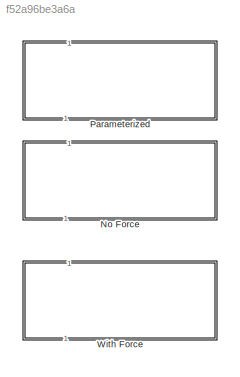
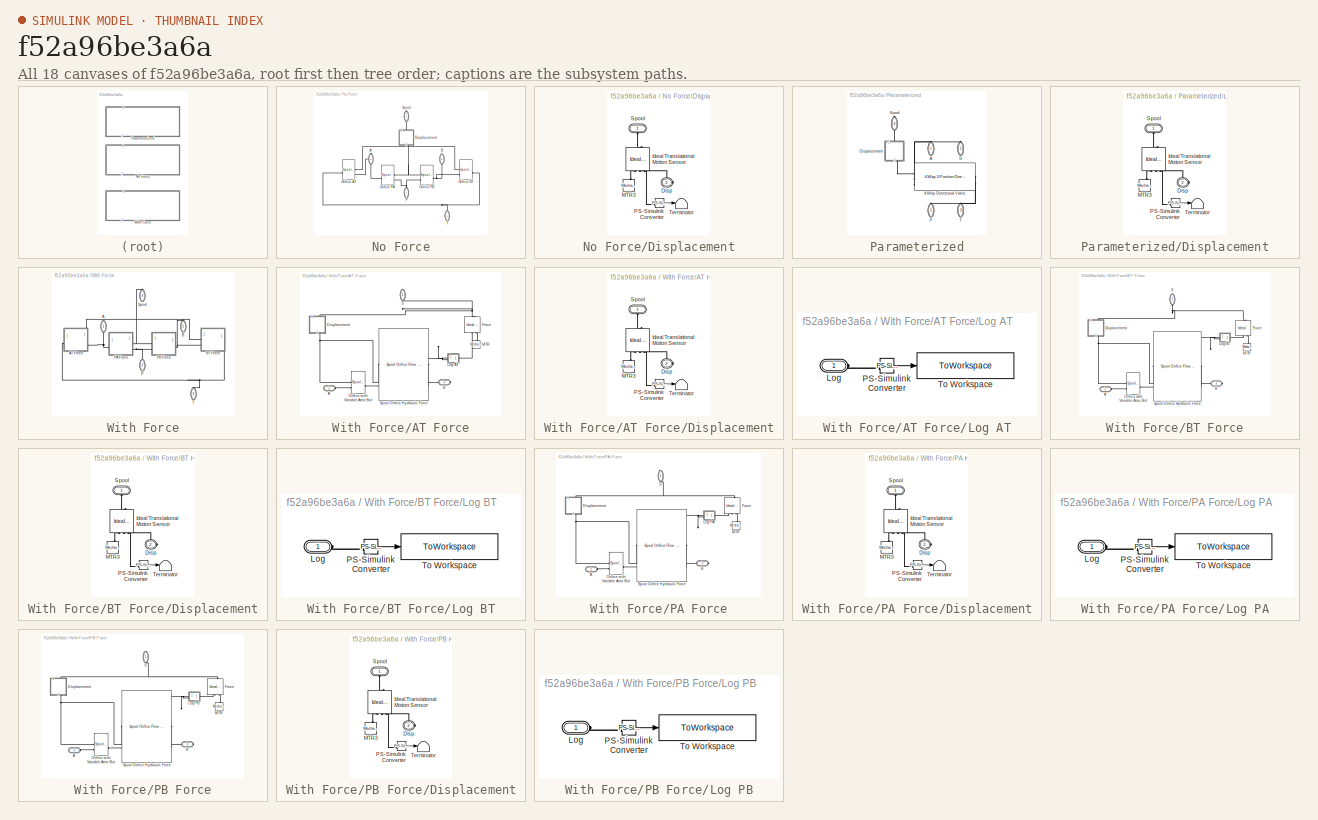
[diagram: thumbnail index - all 18 canvases of the model, root first then tree order]
MODEL slx_f52a96be3a6a
KIND library
CONFIG SolverName = ode45
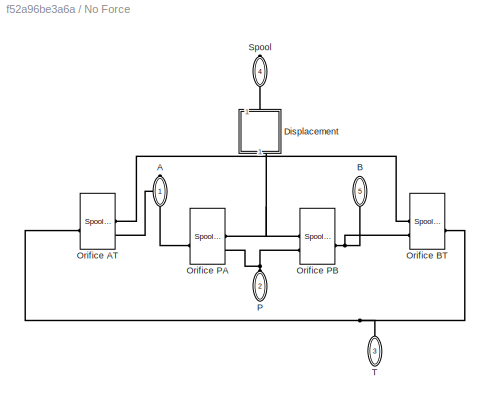
BLOCK [SubSystem] No Force
  NameLocation = right
  ShowPortLabels = FromPortBlockName
BLOCK [PMIOPort] No Force/A
  NameLocation = left
  Side = Right
BLOCK [PMIOPort] No Force/B
  NameLocation = right
  Port = 5
  Side = Right
BLOCK [SubSystem] No Force/Displacement
  NameLocation = right
BLOCK [PMIOPort] No Force/Displacement/Disp
  NameLocation = top
  Port = 2
  Side = Right
BLOCK [Reference] No Force/Displacement/Ideal Translational Motion Sensor  REF=fl_lib/Mechanical/Mechanical Sensors/Ideal Translational
Motion Sensor
  NameLocation = left
  SourceBlock = fl_lib/Mechanical/Mechanical Sensors/Ideal Translational\nMotion Sensor
  SourceType = Ideal Translational\nMotion Sensor
  Tag = Factory Generic
BLOCK [Reference] No Force/Displacement/MTR3  REF=fl_lib/Mechanical/Translational
Elements/Mechanical
Translational
Reference
  NameLocation = left
  SourceBlock = fl_lib/Mechanical/Translational\nElements/Mechanical\nTranslational\nReference
  SourceType = Mechanical\nTranslational\nReference
  Tag = Factory Generic
BLOCK [Reference] No Force/Displacement/PS-Simulink Converter  REF=nesl_utility/PS-Simulink
Converter
  SourceBlock = nesl_utility/PS-Simulink\nConverter
  SourceType = PS-Simulink\nConverter
BLOCK [PMIOPort] No Force/Displacement/Spool
  NameLocation = right
  Side = Left
BLOCK [Terminator] No Force/Displacement/Terminator
BLOCK [Reference] No Force/Orifice AT  REF=SimscapeFluids_lib/Isothermal Liquid/Valves & Orifices/Orifices/Spool Orifice (IL)
  LibrarySourceBlock = sh_lib/Orifices/Orifice with\nVariable Area Slot
  SourceBlock = SimscapeFluids_lib/Isothermal Liquid/Valves & Orifices/Orifices/Spool Orifice (IL)
  SourceType = Spool Orifice (IL)
  Tag = Factory Generic
BLOCK [Reference] No Force/Orifice BT  REF=SimscapeFluids_lib/Isothermal Liquid/Valves & Orifices/Orifices/Spool Orifice (IL)
  LibrarySourceBlock = sh_lib/Orifices/Orifice with\nVariable Area Slot
  SourceBlock = SimscapeFluids_lib/Isothermal Liquid/Valves & Orifices/Orifices/Spool Orifice (IL)
  SourceType = Spool Orifice (IL)
  Tag = Factory Generic
BLOCK [Reference] No Force/Orifice PA  REF=SimscapeFluids_lib/Isothermal Liquid/Valves & Orifices/Orifices/Spool Orifice (IL)
  LibrarySourceBlock = sh_lib/Orifices/Orifice with\nVariable Area Slot
  SourceBlock = SimscapeFluids_lib/Isothermal Liquid/Valves & Orifices/Orifices/Spool Orifice (IL)
  SourceType = Spool Orifice (IL)
  Tag = Factory Generic
BLOCK [Reference] No Force/Orifice PB  REF=SimscapeFluids_lib/Isothermal Liquid/Valves & Orifices/Orifices/Spool Orifice (IL)
  LibrarySourceBlock = sh_lib/Orifices/Orifice with\nVariable Area Slot
  SourceBlock = SimscapeFluids_lib/Isothermal Liquid/Valves & Orifices/Orifices/Spool Orifice (IL)
  SourceType = Spool Orifice (IL)
  Tag = Factory Generic
BLOCK [PMIOPort] No Force/P
  NameLocation = right
  Port = 2
  Side = Left
BLOCK [PMIOPort] No Force/Spool
  NameLocation = right
  Port = 4
  Side = Right
BLOCK [PMIOPort] No Force/T
  NameLocation = left
  Port = 3
  Side = Left
BLOCK [SubSystem] Parameterized
  NameLocation = right
  ShowPortLabels = FromPortBlockName
BLOCK [Reference] Parameterized/4-Way Directional Valve  REF=SimscapeFluids_lib/Isothermal Liquid/Valves & Orifices/Directional Control
Valves/4-Way 3-Position
Directional Valve
(IL)
  LibrarySourceBlock = sh_lib/Valves/Directional Valves/4-Way Directional\nValve
  NameLocation = right
  SourceBlock = SimscapeFluids_lib/Isothermal Liquid/Valves & Orifices/Directional Control\nValves/4-Way 3-Position\nDirectional Valve\n(IL)
  SourceType = 4-Way 3-Position\nDirectional Valve\n(IL)
BLOCK [PMIOPort] Parameterized/A
  NameLocation = right
  Side = Right
BLOCK [PMIOPort] Parameterized/B
  NameLocation = left
  Port = 5
  Side = Right
BLOCK [SubSystem] Parameterized/Displacement
  NameLocation = left
BLOCK [PMIOPort] Parameterized/Displacement/Disp
  NameLocation = top
  Port = 2
  Side = Right
BLOCK [Reference] Parameterized/Displacement/Ideal Translational Motion Sensor  REF=fl_lib/Mechanical/Mechanical Sensors/Ideal Translational
Motion Sensor
  NameLocation = left
  SourceBlock = fl_lib/Mechanical/Mechanical Sensors/Ideal Translational\nMotion Sensor
  SourceType = Ideal Translational\nMotion Sensor
  Tag = Factory Generic
BLOCK [Reference] Parameterized/Displacement/MTR3  REF=fl_lib/Mechanical/Translational
Elements/Mechanical
Translational
Reference
  NameLocation = left
  SourceBlock = fl_lib/Mechanical/Translational\nElements/Mechanical\nTranslational\nReference
  SourceType = Mechanical\nTranslational\nReference
  Tag = Factory Generic
BLOCK [Reference] Parameterized/Displacement/PS-Simulink Converter  REF=nesl_utility/PS-Simulink
Converter
  SourceBlock = nesl_utility/PS-Simulink\nConverter
  SourceType = PS-Simulink\nConverter
BLOCK [PMIOPort] Parameterized/Displacement/Spool
  NameLocation = right
  Side = Left
BLOCK [Terminator] Parameterized/Displacement/Terminator
BLOCK [PMIOPort] Parameterized/P
  NameLocation = right
  Port = 2
  Side = Left
BLOCK [PMIOPort] Parameterized/Spool
  NameLocation = right
  Port = 4
  Side = Right
BLOCK [PMIOPort] Parameterized/T
  NameLocation = right
  Port = 3
  Side = Left
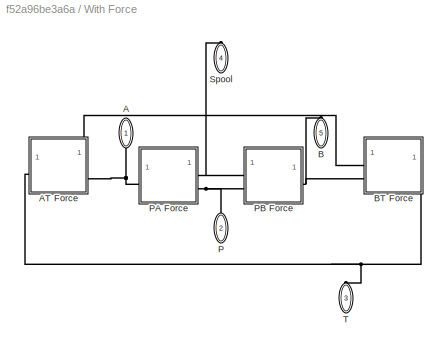
BLOCK [SubSystem] With Force
  NameLocation = right
  ShowPortLabels = FromPortBlockName
BLOCK [PMIOPort] With Force/A
  NameLocation = left
  Side = Right
BLOCK [SubSystem] With Force/AT Force
BLOCK [PMIOPort] With Force/AT Force/A
  Port = 2
  Side = Left
BLOCK [PMIOPort] With Force/AT Force/B
  Port = 3
  Side = Right
BLOCK [SubSystem] With Force/AT Force/Displacement
  NameLocation = right
BLOCK [PMIOPort] With Force/AT Force/Displacement/Disp
  NameLocation = top
  Port = 2
  Side = Right
BLOCK [Reference] With Force/AT Force/Displacement/Ideal Translational Motion Sensor  REF=fl_lib/Mechanical/Mechanical Sensors/Ideal Translational
Motion Sensor
  NameLocation = left
  SourceBlock = fl_lib/Mechanical/Mechanical Sensors/Ideal Translational\nMotion Sensor
  SourceType = Ideal Translational\nMotion Sensor
  Tag = Factory Generic
BLOCK [Reference] With Force/AT Force/Displacement/MTR3  REF=fl_lib/Mechanical/Translational
Elements/Mechanical
Translational
Reference
  NameLocation = left
  SourceBlock = fl_lib/Mechanical/Translational\nElements/Mechanical\nTranslational\nReference
  SourceType = Mechanical\nTranslational\nReference
  Tag = Factory Generic
BLOCK [Reference] With Force/AT Force/Displacement/PS-Simulink Converter  REF=nesl_utility/PS-Simulink
Converter
  SourceBlock = nesl_utility/PS-Simulink\nConverter
  SourceType = PS-Simulink\nConverter
BLOCK [PMIOPort] With Force/AT Force/Displacement/Spool
  NameLocation = right
  Side = Left
BLOCK [Terminator] With Force/AT Force/Displacement/Terminator
BLOCK [Reference] With Force/AT Force/Force  REF=fl_lib/Mechanical/Mechanical Sources/Ideal Force Source
  NameLocation = left
  SourceBlock = fl_lib/Mechanical/Mechanical Sources/Ideal Force Source
  SourceType = Ideal Force Source
  Tag = Factory Generic
BLOCK [SubSystem] With Force/AT Force/Log AT
BLOCK [PMIOPort] With Force/AT Force/Log AT/Log
  Side = Left
BLOCK [Reference] With Force/AT Force/Log AT/PS-Simulink Converter  REF=nesl_utility/PS-Simulink
Converter
  SourceBlock = nesl_utility/PS-Simulink\nConverter
  SourceType = PS-Simulink\nConverter
BLOCK [ToWorkspace] With Force/AT Force/Log AT/To Workspace
  MaxDataPoints = inf
  SampleTime = -1
  SaveFormat = Structure With Time
  VariableName = Spool_Hydr_Force_AT
BLOCK [Reference] With Force/AT Force/MTR  REF=fl_lib/Mechanical/Translational
Elements/Mechanical
Translational
Reference
  NameLocation = right
  SourceBlock = fl_lib/Mechanical/Translational\nElements/Mechanical\nTranslational\nReference
  SourceType = Mechanical\nTranslational\nReference
  Tag = Factory Generic
BLOCK [Reference] With Force/AT Force/Orifice with Variable Area Slot  REF=SimscapeFluids_lib/Isothermal Liquid/Valves & Orifices/Orifices/Spool Orifice (IL)
  LibrarySourceBlock = sh_lib/Orifices/Orifice with\nVariable Area Slot
  SourceBlock = SimscapeFluids_lib/Isothermal Liquid/Valves & Orifices/Orifices/Spool Orifice (IL)
  SourceType = Spool Orifice (IL)
  Tag = Factory Generic
BLOCK [PMIOPort] With Force/AT Force/S
  NameLocation = right
  Side = Left
BLOCK [Reference] With Force/AT Force/Spool Orifice Hydraulic Force  REF=SimscapeFluids_lib/Isothermal Liquid/Valves & Orifices/Valve Actuators &
Forces/Spool Orifice Flow
Force (IL)
  LibrarySourceBlock = sh_lib/Valves/Valve Forces/Spool Orifice\nHydraulic Force
  SourceBlock = SimscapeFluids_lib/Isothermal Liquid/Valves & Orifices/Valve Actuators &\nForces/Spool Orifice Flow\nForce (IL)
  SourceType = Spool Orifice Flow\nForce (IL)
BLOCK [PMIOPort] With Force/B
  NameLocation = right
  Port = 5
  Side = Right
BLOCK [SubSystem] With Force/BT Force
BLOCK [PMIOPort] With Force/BT Force/A
  Port = 2
  Side = Left
BLOCK [PMIOPort] With Force/BT Force/B
  Port = 3
  Side = Right
BLOCK [SubSystem] With Force/BT Force/Displacement
  NameLocation = right
BLOCK [PMIOPort] With Force/BT Force/Displacement/Disp
  NameLocation = top
  Port = 2
  Side = Right
BLOCK [Reference] With Force/BT Force/Displacement/Ideal Translational Motion Sensor  REF=fl_lib/Mechanical/Mechanical Sensors/Ideal Translational
Motion Sensor
  NameLocation = left
  SourceBlock = fl_lib/Mechanical/Mechanical Sensors/Ideal Translational\nMotion Sensor
  SourceType = Ideal Translational\nMotion Sensor
  Tag = Factory Generic
BLOCK [Reference] With Force/BT Force/Displacement/MTR3  REF=fl_lib/Mechanical/Translational
Elements/Mechanical
Translational
Reference
  NameLocation = left
  SourceBlock = fl_lib/Mechanical/Translational\nElements/Mechanical\nTranslational\nReference
  SourceType = Mechanical\nTranslational\nReference
  Tag = Factory Generic
BLOCK [Reference] With Force/BT Force/Displacement/PS-Simulink Converter  REF=nesl_utility/PS-Simulink
Converter
  SourceBlock = nesl_utility/PS-Simulink\nConverter
  SourceType = PS-Simulink\nConverter
BLOCK [PMIOPort] With Force/BT Force/Displacement/Spool
  NameLocation = right
  Side = Left
BLOCK [Terminator] With Force/BT Force/Displacement/Terminator
BLOCK [Reference] With Force/BT Force/Force  REF=fl_lib/Mechanical/Mechanical Sources/Ideal Force Source
  NameLocation = left
  SourceBlock = fl_lib/Mechanical/Mechanical Sources/Ideal Force Source
  SourceType = Ideal Force Source
  Tag = Factory Generic
BLOCK [SubSystem] With Force/BT Force/Log BT
BLOCK [PMIOPort] With Force/BT Force/Log BT/Log
  Side = Left
BLOCK [Reference] With Force/BT Force/Log BT/PS-Simulink Converter  REF=nesl_utility/PS-Simulink
Converter
  SourceBlock = nesl_utility/PS-Simulink\nConverter
  SourceType = PS-Simulink\nConverter
BLOCK [ToWorkspace] With Force/BT Force/Log BT/To Workspace
  MaxDataPoints = inf
  SampleTime = -1
  SaveFormat = Structure With Time
  VariableName = Spool_Hydr_Force_BT
BLOCK [Reference] With Force/BT Force/MTR  REF=fl_lib/Mechanical/Translational
Elements/Mechanical
Translational
Reference
  NameLocation = right
  SourceBlock = fl_lib/Mechanical/Translational\nElements/Mechanical\nTranslational\nReference
  SourceType = Mechanical\nTranslational\nReference
  Tag = Factory Generic
BLOCK [Reference] With Force/BT Force/Orifice with Variable Area Slot  REF=SimscapeFluids_lib/Isothermal Liquid/Valves & Orifices/Orifices/Spool Orifice (IL)
  LibrarySourceBlock = sh_lib/Orifices/Orifice with\nVariable Area Slot
  SourceBlock = SimscapeFluids_lib/Isothermal Liquid/Valves & Orifices/Orifices/Spool Orifice (IL)
  SourceType = Spool Orifice (IL)
  Tag = Factory Generic
BLOCK [PMIOPort] With Force/BT Force/S
  NameLocation = right
  Side = Left
BLOCK [Reference] With Force/BT Force/Spool Orifice Hydraulic Force  REF=SimscapeFluids_lib/Isothermal Liquid/Valves & Orifices/Valve Actuators &
Forces/Spool Orifice Flow
Force (IL)
  LibrarySourceBlock = sh_lib/Valves/Valve Forces/Spool Orifice\nHydraulic Force
  SourceBlock = SimscapeFluids_lib/Isothermal Liquid/Valves & Orifices/Valve Actuators &\nForces/Spool Orifice Flow\nForce (IL)
  SourceType = Spool Orifice Flow\nForce (IL)
BLOCK [PMIOPort] With Force/P
  NameLocation = right
  Port = 2
  Side = Left
BLOCK [SubSystem] With Force/PA Force
BLOCK [PMIOPort] With Force/PA Force/A
  Port = 2
  Side = Left
BLOCK [PMIOPort] With Force/PA Force/B
  Port = 3
  Side = Right
BLOCK [SubSystem] With Force/PA Force/Displacement
  NameLocation = right
BLOCK [PMIOPort] With Force/PA Force/Displacement/Disp
  NameLocation = top
  Port = 2
  Side = Right
BLOCK [Reference] With Force/PA Force/Displacement/Ideal Translational Motion Sensor  REF=fl_lib/Mechanical/Mechanical Sensors/Ideal Translational
Motion Sensor
  NameLocation = left
  SourceBlock = fl_lib/Mechanical/Mechanical Sensors/Ideal Translational\nMotion Sensor
  SourceType = Ideal Translational\nMotion Sensor
  Tag = Factory Generic
BLOCK [Reference] With Force/PA Force/Displacement/MTR3  REF=fl_lib/Mechanical/Translational
Elements/Mechanical
Translational
Reference
  NameLocation = left
  SourceBlock = fl_lib/Mechanical/Translational\nElements/Mechanical\nTranslational\nReference
  SourceType = Mechanical\nTranslational\nReference
  Tag = Factory Generic
BLOCK [Reference] With Force/PA Force/Displacement/PS-Simulink Converter  REF=nesl_utility/PS-Simulink
Converter
  SourceBlock = nesl_utility/PS-Simulink\nConverter
  SourceType = PS-Simulink\nConverter
BLOCK [PMIOPort] With Force/PA Force/Displacement/Spool
  NameLocation = right
  Side = Left
BLOCK [Terminator] With Force/PA Force/Displacement/Terminator
BLOCK [Reference] With Force/PA Force/Force  REF=fl_lib/Mechanical/Mechanical Sources/Ideal Force Source
  NameLocation = left
  SourceBlock = fl_lib/Mechanical/Mechanical Sources/Ideal Force Source
  SourceType = Ideal Force Source
  Tag = Factory Generic
BLOCK [SubSystem] With Force/PA Force/Log PA
BLOCK [PMIOPort] With Force/PA Force/Log PA/Log
  Side = Left
BLOCK [Reference] With Force/PA Force/Log PA/PS-Simulink Converter  REF=nesl_utility/PS-Simulink
Converter
  SourceBlock = nesl_utility/PS-Simulink\nConverter
  SourceType = PS-Simulink\nConverter
BLOCK [ToWorkspace] With Force/PA Force/Log PA/To Workspace
  MaxDataPoints = inf
  SampleTime = -1
  SaveFormat = Structure With Time
  VariableName = Spool_Hydr_Force_PA
BLOCK [Reference] With Force/PA Force/MTR  REF=fl_lib/Mechanical/Translational
Elements/Mechanical
Translational
Reference
  NameLocation = right
  SourceBlock = fl_lib/Mechanical/Translational\nElements/Mechanical\nTranslational\nReference
  SourceType = Mechanical\nTranslational\nReference
  Tag = Factory Generic
BLOCK [Reference] With Force/PA Force/Orifice with Variable Area Slot  REF=SimscapeFluids_lib/Isothermal Liquid/Valves & Orifices/Orifices/Spool Orifice (IL)
  LibrarySourceBlock = sh_lib/Orifices/Orifice with\nVariable Area Slot
  SourceBlock = SimscapeFluids_lib/Isothermal Liquid/Valves & Orifices/Orifices/Spool Orifice (IL)
  SourceType = Spool Orifice (IL)
  Tag = Factory Generic
BLOCK [PMIOPort] With Force/PA Force/S
  NameLocation = right
  Side = Left
BLOCK [Reference] With Force/PA Force/Spool Orifice Hydraulic Force  REF=SimscapeFluids_lib/Isothermal Liquid/Valves & Orifices/Valve Actuators &
Forces/Spool Orifice Flow
Force (IL)
  LibrarySourceBlock = sh_lib/Valves/Valve Forces/Spool Orifice\nHydraulic Force
  SourceBlock = SimscapeFluids_lib/Isothermal Liquid/Valves & Orifices/Valve Actuators &\nForces/Spool Orifice Flow\nForce (IL)
  SourceType = Spool Orifice Flow\nForce (IL)
BLOCK [SubSystem] With Force/PB Force
BLOCK [PMIOPort] With Force/PB Force/A
  Port = 2
  Side = Left
BLOCK [PMIOPort] With Force/PB Force/B
  Port = 3
  Side = Right
BLOCK [SubSystem] With Force/PB Force/Displacement
  NameLocation = right
BLOCK [PMIOPort] With Force/PB Force/Displacement/Disp
  NameLocation = top
  Port = 2
  Side = Right
BLOCK [Reference] With Force/PB Force/Displacement/Ideal Translational Motion Sensor  REF=fl_lib/Mechanical/Mechanical Sensors/Ideal Translational
Motion Sensor
  NameLocation = left
  SourceBlock = fl_lib/Mechanical/Mechanical Sensors/Ideal Translational\nMotion Sensor
  SourceType = Ideal Translational\nMotion Sensor
  Tag = Factory Generic
BLOCK [Reference] With Force/PB Force/Displacement/MTR3  REF=fl_lib/Mechanical/Translational
Elements/Mechanical
Translational
Reference
  NameLocation = left
  SourceBlock = fl_lib/Mechanical/Translational\nElements/Mechanical\nTranslational\nReference
  SourceType = Mechanical\nTranslational\nReference
  Tag = Factory Generic
BLOCK [Reference] With Force/PB Force/Displacement/PS-Simulink Converter  REF=nesl_utility/PS-Simulink
Converter
  SourceBlock = nesl_utility/PS-Simulink\nConverter
  SourceType = PS-Simulink\nConverter
BLOCK [PMIOPort] With Force/PB Force/Displacement/Spool
  NameLocation = right
  Side = Left
BLOCK [Terminator] With Force/PB Force/Displacement/Terminator
BLOCK [Reference] With Force/PB Force/Force  REF=fl_lib/Mechanical/Mechanical Sources/Ideal Force Source
  NameLocation = left
  SourceBlock = fl_lib/Mechanical/Mechanical Sources/Ideal Force Source
  SourceType = Ideal Force Source
  Tag = Factory Generic
BLOCK [SubSystem] With Force/PB Force/Log PB
BLOCK [PMIOPort] With Force/PB Force/Log PB/Log
  Side = Left
BLOCK [Reference] With Force/PB Force/Log PB/PS-Simulink Converter  REF=nesl_utility/PS-Simulink
Converter
  SourceBlock = nesl_utility/PS-Simulink\nConverter
  SourceType = PS-Simulink\nConverter
BLOCK [ToWorkspace] With Force/PB Force/Log PB/To Workspace
  MaxDataPoints = inf
  SampleTime = -1
  SaveFormat = Structure With Time
  VariableName = Spool_Hydr_Force_PB
BLOCK [Reference] With Force/PB Force/MTR  REF=fl_lib/Mechanical/Translational
Elements/Mechanical
Translational
Reference
  NameLocation = right
  SourceBlock = fl_lib/Mechanical/Translational\nElements/Mechanical\nTranslational\nReference
  SourceType = Mechanical\nTranslational\nReference
  Tag = Factory Generic
BLOCK [Reference] With Force/PB Force/Orifice with Variable Area Slot  REF=SimscapeFluids_lib/Isothermal Liquid/Valves & Orifices/Orifices/Spool Orifice (IL)
  LibrarySourceBlock = sh_lib/Orifices/Orifice with\nVariable Area Slot
  SourceBlock = SimscapeFluids_lib/Isothermal Liquid/Valves & Orifices/Orifices/Spool Orifice (IL)
  SourceType = Spool Orifice (IL)
  Tag = Factory Generic
BLOCK [PMIOPort] With Force/PB Force/S
  NameLocation = right
  Side = Left
BLOCK [Reference] With Force/PB Force/Spool Orifice Hydraulic Force  REF=SimscapeFluids_lib/Isothermal Liquid/Valves & Orifices/Valve Actuators &
Forces/Spool Orifice Flow
Force (IL)
  LibrarySourceBlock = sh_lib/Valves/Valve Forces/Spool Orifice\nHydraulic Force
  SourceBlock = SimscapeFluids_lib/Isothermal Liquid/Valves & Orifices/Valve Actuators &\nForces/Spool Orifice Flow\nForce (IL)
  SourceType = Spool Orifice Flow\nForce (IL)
BLOCK [PMIOPort] With Force/Spool
  NameLocation = right
  Port = 4
  Side = Right
BLOCK [PMIOPort] With Force/T
  NameLocation = left
  Port = 3
  Side = Left
LINE No Force/Displacement/PS-Simulink Converter:1 -> No Force/Displacement/Terminator:1
LINE Parameterized/Displacement/PS-Simulink Converter:1 -> Parameterized/Displacement/Terminator:1
LINE With Force/AT Force/Displacement/PS-Simulink Converter:1 -> With Force/AT Force/Displacement/Terminator:1
LINE With Force/AT Force/Log AT/PS-Simulink Converter:1 -> With Force/AT Force/Log AT/To Workspace:1
LINE With Force/BT Force/Displacement/PS-Simulink Converter:1 -> With Force/BT Force/Displacement/Terminator:1
LINE With Force/BT Force/Log BT/PS-Simulink Converter:1 -> With Force/BT Force/Log BT/To Workspace:1
LINE With Force/PA Force/Displacement/PS-Simulink Converter:1 -> With Force/PA Force/Displacement/Terminator:1
LINE With Force/PA Force/Log PA/PS-Simulink Converter:1 -> With Force/PA Force/Log PA/To Workspace:1
LINE With Force/PB Force/Displacement/PS-Simulink Converter:1 -> With Force/PB Force/Displacement/Terminator:1
LINE With Force/PB Force/Log PB/PS-Simulink Converter:1 -> With Force/PB Force/Log PB/To Workspace:1
PNET net1: No Force/A:RConn1 -- No Force/Orifice AT:LConn2 -- No Force/Orifice PA:RConn1
PNET net2: No Force/B:RConn1 -- No Force/Orifice BT:LConn2 -- No Force/Orifice PB:RConn1
PLINE No Force/Displacement/Disp:RConn1 -- No Force/Displacement/Ideal Translational Motion Sensor:RConn3
PLINE No Force/Displacement/Ideal Translational Motion Sensor:LConn1 -- No Force/Displacement/Spool:RConn1
PLINE No Force/Displacement/Ideal Translational Motion Sensor:RConn1 -- No Force/Displacement/MTR3:LConn1
PLINE No Force/Displacement/Ideal Translational Motion Sensor:RConn2 -- No Force/Displacement/PS-Simulink Converter:LConn1
PLINE No Force/Displacement:LConn1 -- No Force/Spool:RConn1
PNET net3: No Force/Displacement:RConn1 -- No Force/Orifice AT:LConn1 -- No Force/Orifice BT:LConn1 -- No Force/Orifice PA:LConn1 -- No Force/Orifice PB:LConn1
PNET net4: No Force/Orifice AT:RConn1 -- No Force/Orifice BT:RConn1 -- No Force/T:RConn1
PNET net5: No Force/Orifice PA:LConn2 -- No Force/Orifice PB:LConn2 -- No Force/P:RConn1
PLINE Parameterized/4-Way Directional Valve:LConn1 -- Parameterized/Displacement:RConn1
PLINE Parameterized/4-Way Directional Valve:LConn2 -- Parameterized/A:RConn1
PLINE Parameterized/4-Way Directional Valve:LConn3 -- Parameterized/B:RConn1
PLINE Parameterized/4-Way Directional Valve:RConn1 -- Parameterized/P:RConn1
PLINE Parameterized/4-Way Directional Valve:RConn2 -- Parameterized/T:RConn1
PLINE Parameterized/Displacement/Disp:RConn1 -- Parameterized/Displacement/Ideal Translational Motion Sensor:RConn3
PLINE Parameterized/Displacement/Ideal Translational Motion Sensor:LConn1 -- Parameterized/Displacement/Spool:RConn1
PLINE Parameterized/Displacement/Ideal Translational Motion Sensor:RConn1 -- Parameterized/Displacement/MTR3:LConn1
PLINE Parameterized/Displacement/Ideal Translational Motion Sensor:RConn2 -- Parameterized/Displacement/PS-Simulink Converter:LConn1
PLINE Parameterized/Displacement:LConn1 -- Parameterized/Spool:RConn1
PNET net6: With Force/A:RConn1 -- With Force/AT Force:LConn2 -- With Force/PA Force:RConn1
PLINE With Force/AT Force/A:RConn1 -- With Force/AT Force/Orifice with Variable Area Slot:LConn2
PLINE With Force/AT Force/B:RConn1 -- With Force/AT Force/Spool Orifice Hydraulic Force:RConn1
PLINE With Force/AT Force/Displacement/Disp:RConn1 -- With Force/AT Force/Displacement/Ideal Translational Motion Sensor:RConn3
PLINE With Force/AT Force/Displacement/Ideal Translational Motion Sensor:LConn1 -- With Force/AT Force/Displacement/Spool:RConn1
PLINE With Force/AT Force/Displacement/Ideal Translational Motion Sensor:RConn1 -- With Force/AT Force/Displacement/MTR3:LConn1
PLINE With Force/AT Force/Displacement/Ideal Translational Motion Sensor:RConn2 -- With Force/AT Force/Displacement/PS-Simulink Converter:LConn1
PNET net7: With Force/AT Force/Displacement:LConn1 -- With Force/AT Force/Force:LConn1 -- With Force/AT Force/S:RConn1
PNET net8: With Force/AT Force/Displacement:RConn1 -- With Force/AT Force/Orifice with Variable Area Slot:LConn1 -- With Force/AT Force/Spool Orifice Hydraulic Force:LConn2
PNET net9: With Force/AT Force/Force:RConn1 -- With Force/AT Force/Log AT:LConn1 -- With Force/AT Force/Spool Orifice Hydraulic Force:RConn2
PLINE With Force/AT Force/Force:RConn2 -- With Force/AT Force/MTR:LConn1
PLINE With Force/AT Force/Log AT/Log:RConn1 -- With Force/AT Force/Log AT/PS-Simulink Converter:LConn1
PLINE With Force/AT Force/Orifice with Variable Area Slot:RConn1 -- With Force/AT Force/Spool Orifice Hydraulic Force:LConn1
PNET net10: With Force/AT Force:LConn1 -- With Force/BT Force:LConn1 -- With Force/PA Force:LConn1 -- With Force/PB Force:LConn1 -- With Force/Spool:RConn1
PNET net11: With Force/AT Force:RConn1 -- With Force/BT Force:RConn1 -- With Force/T:RConn1
PNET net12: With Force/B:RConn1 -- With Force/BT Force:LConn2 -- With Force/PB Force:RConn1
PLINE With Force/BT Force/A:RConn1 -- With Force/BT Force/Orifice with Variable Area Slot:LConn2
PLINE With Force/BT Force/B:RConn1 -- With Force/BT Force/Spool Orifice Hydraulic Force:RConn1
PLINE With Force/BT Force/Displacement/Disp:RConn1 -- With Force/BT Force/Displacement/Ideal Translational Motion Sensor:RConn3
PLINE With Force/BT Force/Displacement/Ideal Translational Motion Sensor:LConn1 -- With Force/BT Force/Displacement/Spool:RConn1
PLINE With Force/BT Force/Displacement/Ideal Translational Motion Sensor:RConn1 -- With Force/BT Force/Displacement/MTR3:LConn1
PLINE With Force/BT Force/Displacement/Ideal Translational Motion Sensor:RConn2 -- With Force/BT Force/Displacement/PS-Simulink Converter:LConn1
PNET net13: With Force/BT Force/Displacement:LConn1 -- With Force/BT Force/Force:LConn1 -- With Force/BT Force/S:RConn1
PNET net14: With Force/BT Force/Displacement:RConn1 -- With Force/BT Force/Orifice with Variable Area Slot:LConn1 -- With Force/BT Force/Spool Orifice Hydraulic Force:LConn2
PNET net15: With Force/BT Force/Force:RConn1 -- With Force/BT Force/Log BT:LConn1 -- With Force/BT Force/Spool Orifice Hydraulic Force:RConn2
PLINE With Force/BT Force/Force:RConn2 -- With Force/BT Force/MTR:LConn1
PLINE With Force/BT Force/Log BT/Log:RConn1 -- With Force/BT Force/Log BT/PS-Simulink Converter:LConn1
PLINE With Force/BT Force/Orifice with Variable Area Slot:RConn1 -- With Force/BT Force/Spool Orifice Hydraulic Force:LConn1
PNET net16: With Force/P:RConn1 -- With Force/PA Force:LConn2 -- With Force/PB Force:LConn2
PLINE With Force/PA Force/A:RConn1 -- With Force/PA Force/Orifice with Variable Area Slot:LConn2
PLINE With Force/PA Force/B:RConn1 -- With Force/PA Force/Spool Orifice Hydraulic Force:RConn1
PLINE With Force/PA Force/Displacement/Disp:RConn1 -- With Force/PA Force/Displacement/Ideal Translational Motion Sensor:RConn3
PLINE With Force/PA Force/Displacement/Ideal Translational Motion Sensor:LConn1 -- With Force/PA Force/Displacement/Spool:RConn1
PLINE With Force/PA Force/Displacement/Ideal Translational Motion Sensor:RConn1 -- With Force/PA Force/Displacement/MTR3:LConn1
PLINE With Force/PA Force/Displacement/Ideal Translational Motion Sensor:RConn2 -- With Force/PA Force/Displacement/PS-Simulink Converter:LConn1
PNET net17: With Force/PA Force/Displacement:LConn1 -- With Force/PA Force/Force:LConn1 -- With Force/PA Force/S:RConn1
PNET net18: With Force/PA Force/Displacement:RConn1 -- With Force/PA Force/Orifice with Variable Area Slot:LConn1 -- With Force/PA Force/Spool Orifice Hydraulic Force:LConn2
PNET net19: With Force/PA Force/Force:RConn1 -- With Force/PA Force/Log PA:LConn1 -- With Force/PA Force/Spool Orifice Hydraulic Force:RConn2
PLINE With Force/PA Force/Force:RConn2 -- With Force/PA Force/MTR:LConn1
PLINE With Force/PA Force/Log PA/Log:RConn1 -- With Force/PA Force/Log PA/PS-Simulink Converter:LConn1
PLINE With Force/PA Force/Orifice with Variable Area Slot:RConn1 -- With Force/PA Force/Spool Orifice Hydraulic Force:LConn1
PLINE With Force/PB Force/A:RConn1 -- With Force/PB Force/Orifice with Variable Area Slot:LConn2
PLINE With Force/PB Force/B:RConn1 -- With Force/PB Force/Spool Orifice Hydraulic Force:RConn1
PLINE With Force/PB Force/Displacement/Disp:RConn1 -- With Force/PB Force/Displacement/Ideal Translational Motion Sensor:RConn3
PLINE With Force/PB Force/Displacement/Ideal Translational Motion Sensor:LConn1 -- With Force/PB Force/Displacement/Spool:RConn1
PLINE With Force/PB Force/Displacement/Ideal Translational Motion Sensor:RConn1 -- With Force/PB Force/Displacement/MTR3:LConn1
PLINE With Force/PB Force/Displacement/Ideal Translational Motion Sensor:RConn2 -- With Force/PB Force/Displacement/PS-Simulink Converter:LConn1
PNET net20: With Force/PB Force/Displacement:LConn1 -- With Force/PB Force/Force:LConn1 -- With Force/PB Force/S:RConn1
PNET net21: With Force/PB Force/Displacement:RConn1 -- With Force/PB Force/Orifice with Variable Area Slot:LConn1 -- With Force/PB Force/Spool Orifice Hydraulic Force:LConn2
PNET net22: With Force/PB Force/Force:RConn1 -- With Force/PB Force/Log PB:LConn1 -- With Force/PB Force/Spool Orifice Hydraulic Force:RConn2
PLINE With Force/PB Force/Force:RConn2 -- With Force/PB Force/MTR:LConn1
PLINE With Force/PB Force/Log PB/Log:RConn1 -- With Force/PB Force/Log PB/PS-Simulink Converter:LConn1
PLINE With Force/PB Force/Orifice with Variable Area Slot:RConn1 -- With Force/PB Force/Spool Orifice Hydraulic Force:LConn1
note: PNET lines group multi-terminal physical nets as a canonical sorted terminal list (undirected conserving connections); 2-terminal nets keep the pairwise PLINE form
